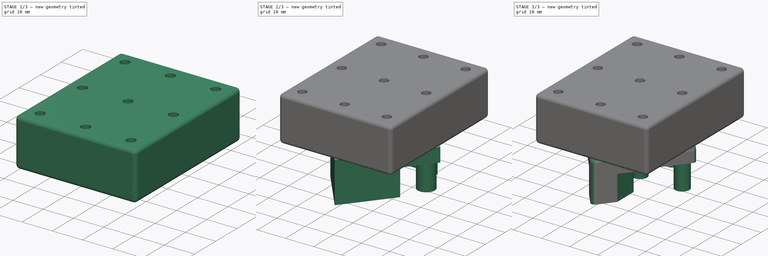
[diagram: build sequence overview — one tinted view per stage of 3, left to right]
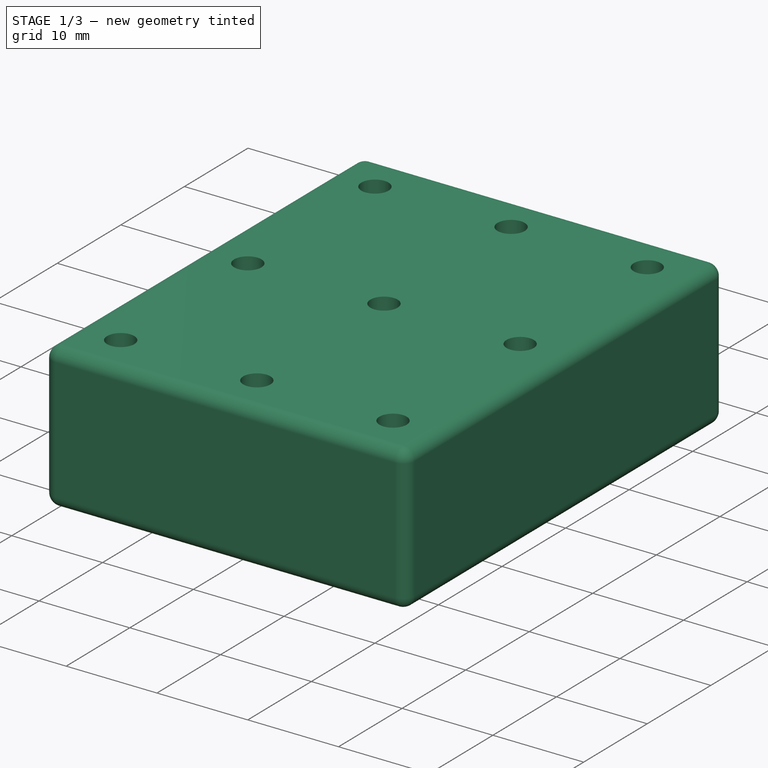
[diagram: stage 1 of 3 — iso view after this stage's code; geometry added in this stage tinted green]
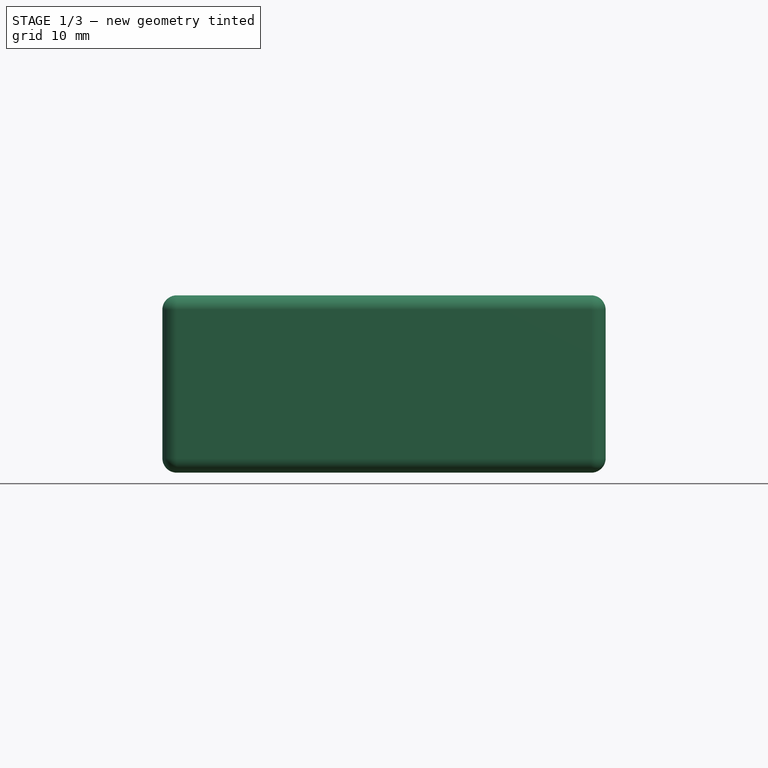
[diagram: stage 1 of 3 — front view after this stage's code; geometry added in this stage tinted green]
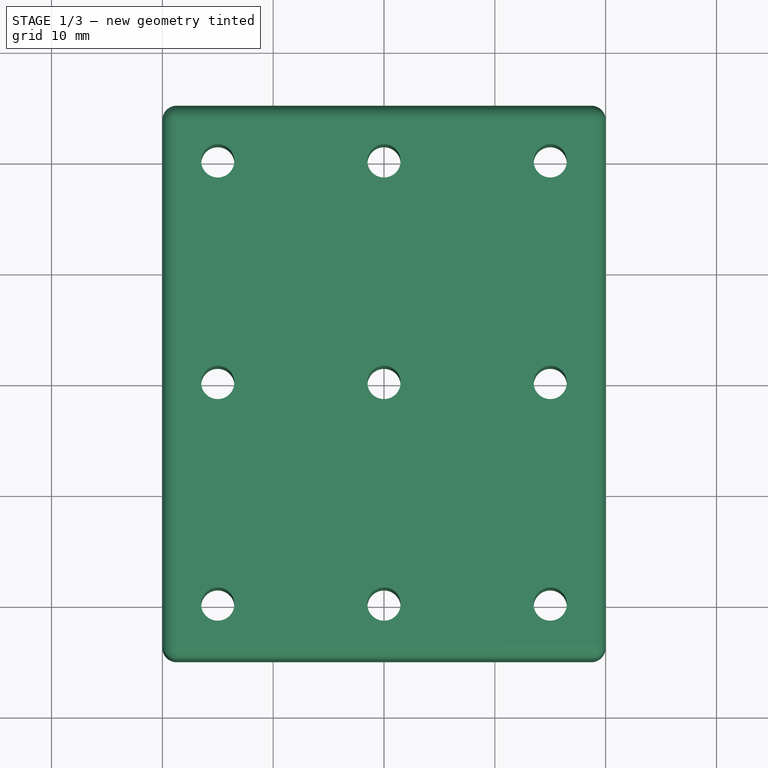
[diagram: stage 1 of 3 — top view after this stage's code; geometry added in this stage tinted green]
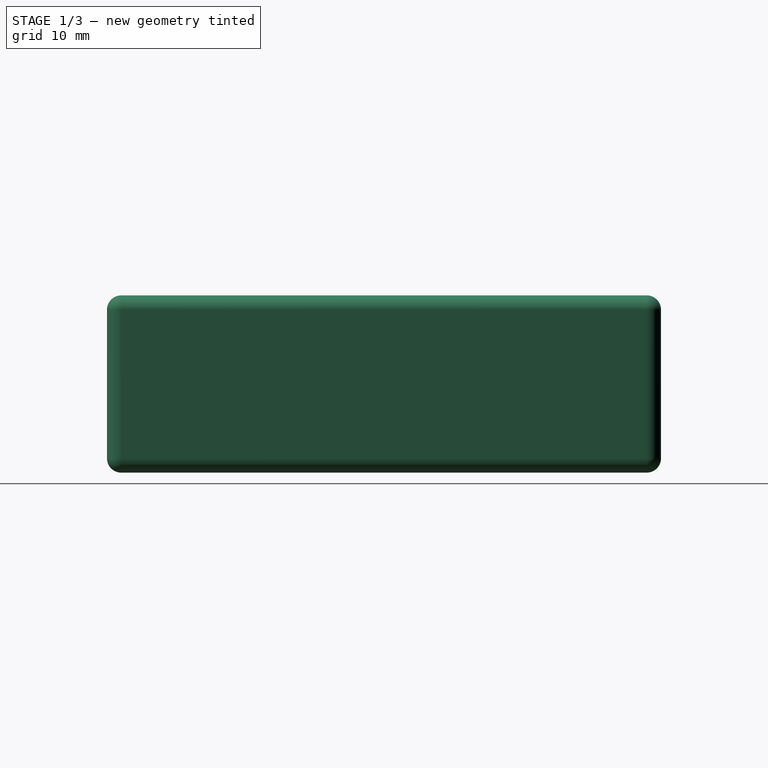
[diagram: stage 1 of 3 — right view after this stage's code; geometry added in this stage tinted green]
FCSTD DOCUMENT  (FreeCAD 1.1R38728 (Git))
Label: pulley_holder
License: All rights reserved
LicenseURL: https://en.wikipedia.org/wiki/All_rights_reserved
objects: Sketcher::SketchObject×4, PartDesign::Pad×2, PartDesign::Pocket×2, PartDesign::Fillet×2, PartDesign::Body×2, PartDesign::SubShapeBinder×1, App::Link×1
note: 29 computed .brp shape members not serialized (recipe doc carries the construction recipe); baked Part::Feature solids carry a one-line shape summary decoded from their .brp
EXTERNAL_REF file=Masterfile.FCStd obj=Spreadsheet

FEATURE [PartDesign::Body] Body  label="pulley_holder1"
  AllowCompound = false
  Group = -> [Sketch,Pad,Sketch001,Pocket,Sketch002,Pocket001,Fillet]
  Origin = -> Origin
  Tip = -> Fillet
FEATURE [PartDesign::SubShapeBinder] Binder
  BindCopyOnChange = 0
  BindMode = 0
  ClaimChildren = false
  Context = -> Body001 [Binder.]
  Fuse = false
  MakeFace = true
  OffsetFill = false
  OffsetIntersection = false
  OffsetJoinType = 0
  OffsetOpenResult = false
  PartialLoad = false
  Refine = true
  Relative = true
  Support = -> [Body[Fillet.Face22]]
  _Version = 2
FEATURE [Sketcher::SketchObject] Sketch003
  ArcFitTolerance = 1e-06
  AttachmentOffset = pos=(0,0,14.5) rot=(0,0,1;0rad)
  AttachmentSupport = -> [XY_Plane001]
  FullyConstrained = true
  MakeInternals = false
  MapMode = 5
  Placement = pos=(0,0,14.5) rot=(0,0,1;0rad)
  expr: .AttachmentOffset.Base.z = <<LinkDimensions>>.holderHeight
  expr: .Placement.Base.z = <<LinkDimensions>>.holderHeight
  expr: Constraints[21] = 40 mm
  expr: Constraints[22] = <<LinkDimensions>>.pulleyDiameter * 2
  expr: Constraints[31] = <<LinkDimensions>>.drillDiameter
  expr: Constraints[41] = <<LinkDimensions>>.holderLength
  expr: Constraints[42] = <<LinkDimensions>>.holderWidth
  sketch-geometry (17):
    g0: Circle CenterX=-15 CenterY=20 CenterZ=0 NormalX=0 NormalY=0 NormalZ=1 AngleXU=0 Radius=1.5
    g1: Circle CenterX=0 CenterY=20 CenterZ=0 NormalX=0 NormalY=0 NormalZ=1 AngleXU=0 Radius=1.5
    g2: Circle CenterX=15 CenterY=20 CenterZ=0 NormalX=0 NormalY=0 NormalZ=1 AngleXU=0 Radius=1.5
    g3: Circle CenterX=0 CenterY=0 CenterZ=0 NormalX=0 NormalY=0 NormalZ=1 AngleXU=0 Radius=1.5
    g4: Circle CenterX=-15 CenterY=0 CenterZ=0 NormalX=0 NormalY=0 NormalZ=1 AngleXU=0 Radius=1.5
    g5: Circle CenterX=15 CenterY=0 CenterZ=0 NormalX=0 NormalY=0 NormalZ=1 AngleXU=0 Radius=1.5
    g6: Circle CenterX=-15 CenterY=-20 CenterZ=0 NormalX=0 NormalY=0 NormalZ=1 AngleXU=0 Radius=1.5
    g7: Circle CenterX=0 CenterY=-20 CenterZ=0 NormalX=0 NormalY=0 NormalZ=1 AngleXU=0 Radius=1.5
    g8: Circle CenterX=15 CenterY=-20 CenterZ=0 NormalX=0 NormalY=0 NormalZ=1 AngleXU=0 Radius=1.5
    g9: LineSegment [constr] StartX=-15 StartY=20 StartZ=0 EndX=-15 EndY=-20 EndZ=0
    g10: LineSegment [constr] StartX=-15 StartY=-20 StartZ=0 EndX=15 EndY=-20 EndZ=0
    g11: LineSegment [constr] StartX=15 StartY=-20 StartZ=0 EndX=15 EndY=20 EndZ=0
    g12: LineSegment [constr] StartX=15 StartY=20 StartZ=0 EndX=-15 EndY=20 EndZ=0
    g13: LineSegment StartX=-20 StartY=25 StartZ=0 EndX=-20 EndY=-25 EndZ=0
    g14: LineSegment StartX=-20 StartY=-25 StartZ=0 EndX=20 EndY=-25 EndZ=0
    g15: LineSegment StartX=20 StartY=-25 StartZ=0 EndX=20 EndY=25 EndZ=0
    g16: LineSegment StartX=20 StartY=25 StartZ=0 EndX=-20 EndY=25 EndZ=0
  constraints (43):
    c: PointOnObject(g1,g-2)
    c: Coincident(g3,g-1)
    c: PointOnObject(g4,g-1)
    c: PointOnObject(g5,g-1)
    c: PointOnObject(g7,g-2)
    c: Coincident(g9,g10)
    c: Coincident(g10,g11)
    c: Coincident(g11,g12)
    c: Coincident(g12,g9)
    c: Vertical(g11)
    c: Horizontal(g12)
    c: Coincident(g9,g0)
    c: Coincident(g10,g8)
    c: Coincident(g2,g11)
    c: PointOnObject(g1,g12)
    c: PointOnObject(g4,g9)
    c: PointOnObject(g5,g11)
    c: PointOnObject(g7,g10)
    c: Coincident(g6,g9)
    c: Symmetric(g6,g8,g-2)
    c: Symmetric(g6,g0,g-1)
    c: DistanceY(g9,g9) = 40
    c: DistanceX(g12,g12) = 30
    c: Equal(g6,g7)
    c: Equal(g7,g8)
    c: Equal(g8,g5)
    c: Equal(g5,g3)
    c: Equal(g3,g4)
    c: Equal(g4,g0)
    c: Equal(g0,g2)
    c: Equal(g1,g2)
    c: Diameter(g2) = 3
    c: Coincident(g13,g14)
    c: Coincident(g14,g15)
    c: Coincident(g15,g16)
    c: Coincident(g16,g13)
    c: Vertical(g13)
    c: Vertical(g15)
    c: Horizontal(g14)
    c: Horizontal(g16)
    c: Symmetric(g15,g13,g3)
    c: DistanceY(g15,g15) = 50
    c: DistanceX(g14,g14) = 40
FEATURE [PartDesign::Pad] Pad001
  Direction = (0,0,1)
  Length = 16
  Length2 = 10
  Profile = -> Sketch003
  ReferenceAxis = -> Sketch003 [N_Axis]
  Refine = true
  Suppressed = false
  Type = 0
  expr: Length = 16 mm
FEATURE [PartDesign::Fillet] Fillet001
  Base = -> Pad001 [Edge4,Edge7,Edge2,Edge6,Edge5,Edge10,Edge12,Edge1,Edge8,Edge11,Edge9,Edge3]
  BaseFeature = -> Pad001
  Radius = 1.3
  Refine = true
  SupportTransform = false
  Suppressed = false
  UseAllEdges = false
  expr: Radius = <<LinkDimensions>>.filletRadius
FEATURE [PartDesign::Body] Body001  label="pulley_holder2"
  AllowCompound = false
  Group = -> [Binder,Sketch003,Pad001,Fillet001]
  Origin = -> Origin001
  Tip = -> Fillet001
FEATURE [App::Link] Link001  label="LinkDimensions"
  LinkedObject = -> <external Masterfile.FCStd>#Spreadsheet
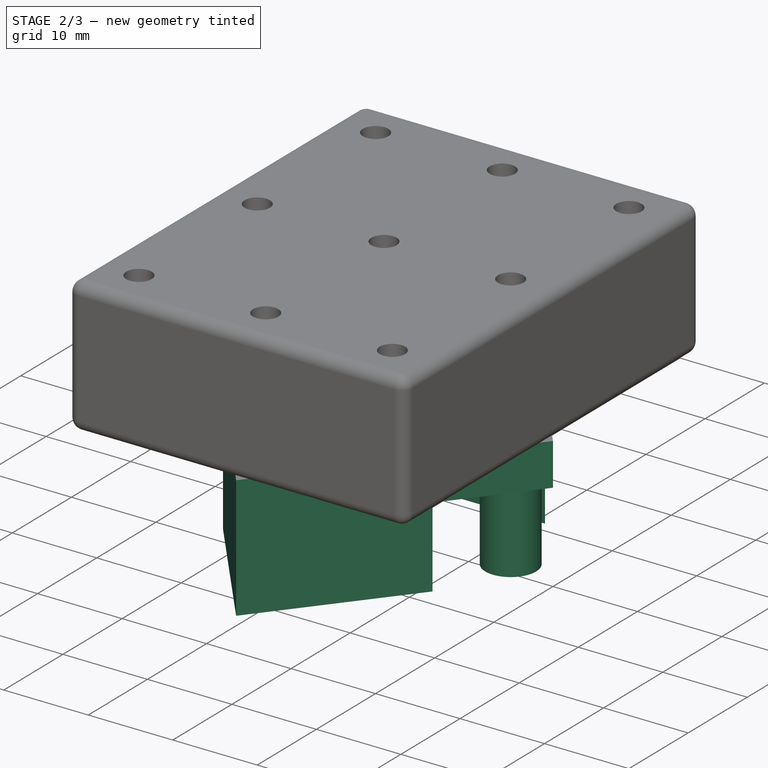
[diagram: stage 2 of 3 — iso view after this stage's code; geometry added in this stage tinted green]
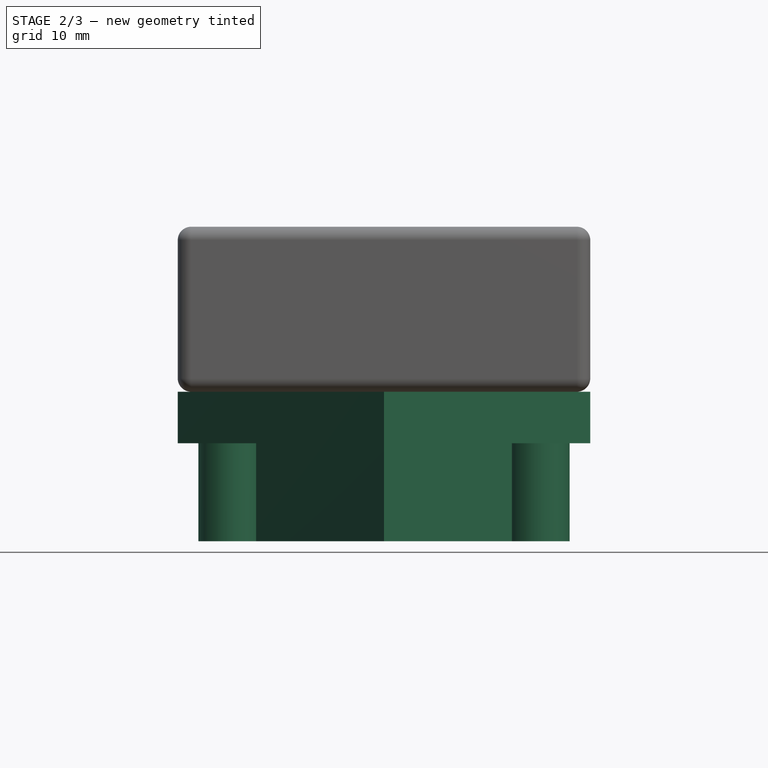
[diagram: stage 2 of 3 — front view after this stage's code; geometry added in this stage tinted green]
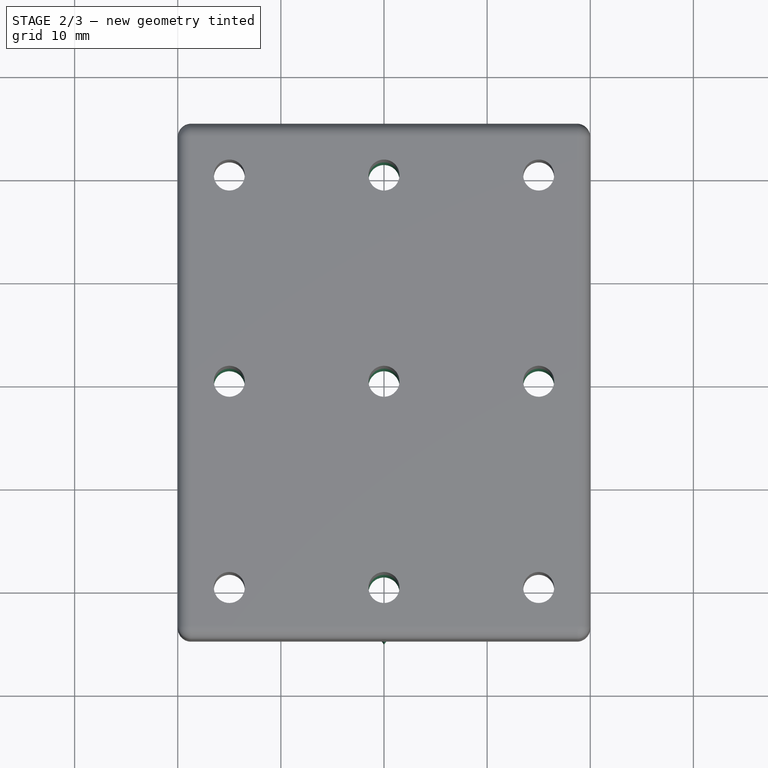
[diagram: stage 2 of 3 — top view after this stage's code; geometry added in this stage tinted green]
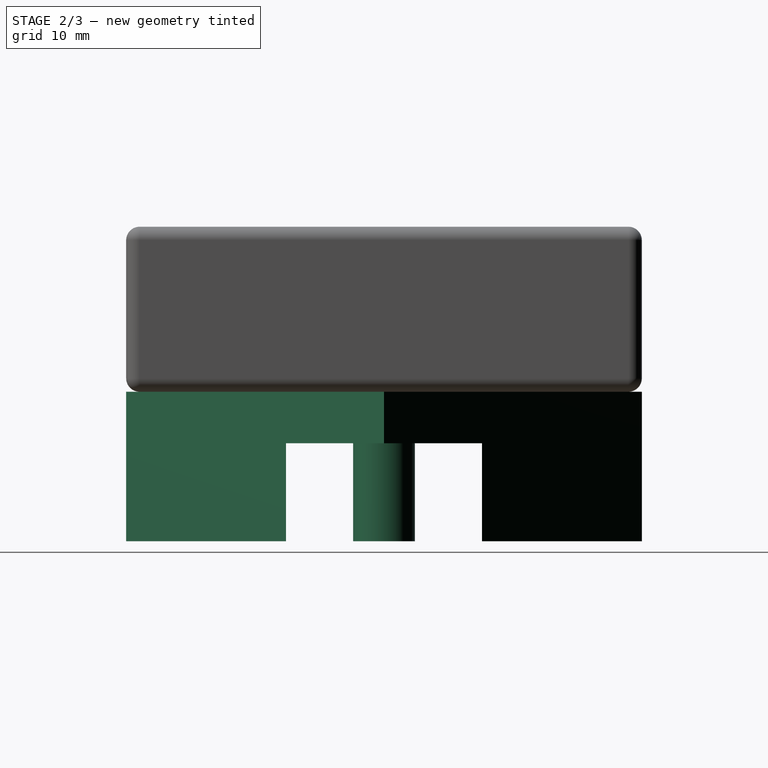
[diagram: stage 2 of 3 — right view after this stage's code; geometry added in this stage tinted green]
FEATURE [Sketcher::SketchObject] Sketch
  ArcFitTolerance = 1e-06
  AttachmentSupport = -> [XY_Plane]
  FullyConstrained = true
  MakeInternals = false
  MapMode = 5
  expr: Constraints[11] = <<LinkDimensions>>.pulleyDiameter * 2
  expr: Constraints[22] = <<LinkDimensions>>.holderLength
  expr: Constraints[23] = <<LinkDimensions>>.holderWidth
  expr: Constraints[3] = <<LinkDimensions>>.drillDiameter
  sketch-geometry (9):
    g0: Circle CenterX=0 CenterY=20 CenterZ=0 NormalX=0 NormalY=0 NormalZ=1 AngleXU=0 Radius=1.5
    g1: Circle CenterX=0 CenterY=-20 CenterZ=0 NormalX=0 NormalY=0 NormalZ=1 AngleXU=0 Radius=1.5
    g2: Circle CenterX=-15 CenterY=0 CenterZ=0 NormalX=0 NormalY=0 NormalZ=1 AngleXU=0 Radius=1.5
    g3: Circle CenterX=0 CenterY=0 CenterZ=0 NormalX=0 NormalY=0 NormalZ=1 AngleXU=0 Radius=1.5
    g4: Circle CenterX=15 CenterY=0 CenterZ=0 NormalX=0 NormalY=0 NormalZ=1 AngleXU=0 Radius=1.5
    g5: LineSegment StartX=-20 StartY=0 StartZ=0 EndX=0 EndY=25 EndZ=0
    g6: LineSegment StartX=0 StartY=25 StartZ=0 EndX=20 EndY=0 EndZ=0
    g7: LineSegment StartX=20 StartY=0 StartZ=0 EndX=0 EndY=-25 EndZ=0
    g8: LineSegment StartX=0 StartY=-25 StartZ=0 EndX=-20 EndY=0 EndZ=0
  constraints (24):
    c: PointOnObject(g0,g-2)
    c: Symmetric(g0,g1,g-1)
    c: Equal(g0,g1)
    c: Diameter(g0) = 3
    c: DistanceY(g1,g0) = 40
    c: PointOnObject(g2,g-1)
    c: Coincident(g3,g-1)
    c: Equal(g0,g2)
    c: Equal(g2,g3)
    c: Equal(g3,g4)
    c: Symmetric(g2,g4,g-2)
    c: DistanceX(g2,g4) = 30
    c: PointOnObject(g5,g-1)
    c: PointOnObject(g5,g-2)
    c: Coincident(g5,g6)
    c: PointOnObject(g6,g-1)
    c: Coincident(g6,g7)
    c: PointOnObject(g7,g-2)
    c: Coincident(g7,g8)
    c: Coincident(g8,g5)
    c: Equal(g5,g6)
    c: Equal(g6,g7)
    c: DistanceY(g7,g5) = 50
    c: DistanceX(g5,g6) = 40
FEATURE [PartDesign::Pad] Pad
  Direction = (0,0,1)
  Length = 14.5
  Length2 = 10
  Profile = -> Sketch
  ReferenceAxis = -> Sketch [N_Axis]
  Refine = true
  Suppressed = false
  Type = 0
  expr: Length = <<LinkDimensions>>.holderHeight
FEATURE [Sketcher::SketchObject] Sketch001
  ArcFitTolerance = 1e-06
  AttachmentSupport = -> [Pad]
  ExternalGeometry = -> [Pad]
  FullyConstrained = true
  MakeInternals = false
  MapMode = 5
  Placement = pos=(0,0,0) rot=(1,0,0;3.14159rad)
  expr: Constraints[11] = <<LinkDimensions>>.pulleyOuterDiameter + 1
  expr: Constraints[5] = <<LinkDimensions>>.pulleyHole + 1
  sketch-geometry (7):
    g0: Circle CenterX=-15 CenterY=0 CenterZ=0 NormalX=0 NormalY=0 NormalZ=1 AngleXU=0 Radius=3
    g1: Circle CenterX=0 CenterY=0 CenterZ=0 NormalX=0 NormalY=0 NormalZ=1 AngleXU=0 Radius=3
    g2: Circle CenterX=15 CenterY=0 CenterZ=0 NormalX=0 NormalY=0 NormalZ=1 AngleXU=0 Radius=3
    g3: ArcOfCircle CenterX=-15 CenterY=0 CenterZ=0 NormalX=0 NormalY=0 NormalZ=1 AngleXU=0 Radius=9.5 StartAngle=1.5708 EndAngle=4.71239
    g4: ArcOfCircle CenterX=15 CenterY=0 CenterZ=0 NormalX=0 NormalY=0 NormalZ=1 AngleXU=0 Radius=9.5 StartAngle=4.71239 EndAngle=7.85398
    g5: LineSegment StartX=-15 StartY=9.5 StartZ=0 EndX=15 EndY=9.5 EndZ=0
    g6: LineSegment StartX=-15 StartY=-9.5 StartZ=0 EndX=15 EndY=-9.5 EndZ=0
  constraints (14):
    c: Coincident(g0,g-3)
    c: Coincident(g1,g-1)
    c: Coincident(g2,g-5)
    c: Equal(g0,g1)
    c: Equal(g1,g2)
    c: Diameter(g0) = 6
    c: Tangent(g3,g5) = 1.5708
    c: Tangent(g3,g6) = -1.5708
    c: Tangent(g4,g5) = 1.5708
    c: Tangent(g4,g6) = -1.5708
    c: Equal(g3,g4)
    c: Diameter(g4) = 19
    c: Coincident(g3,g0)
    c: Coincident(g4,g2)
FEATURE [PartDesign::Pocket] Pocket
  BaseFeature = -> Pad
  Direction = (0,0,1)
  Length = 9.5
  Length2 = 5
  Profile = -> Sketch001
  ReferenceAxis = -> Sketch001 [N_Axis]
  Refine = true
  Suppressed = false
  Type = 0
  expr: Length = <<LinkDimensions>>.pulleyHeight + 0.5
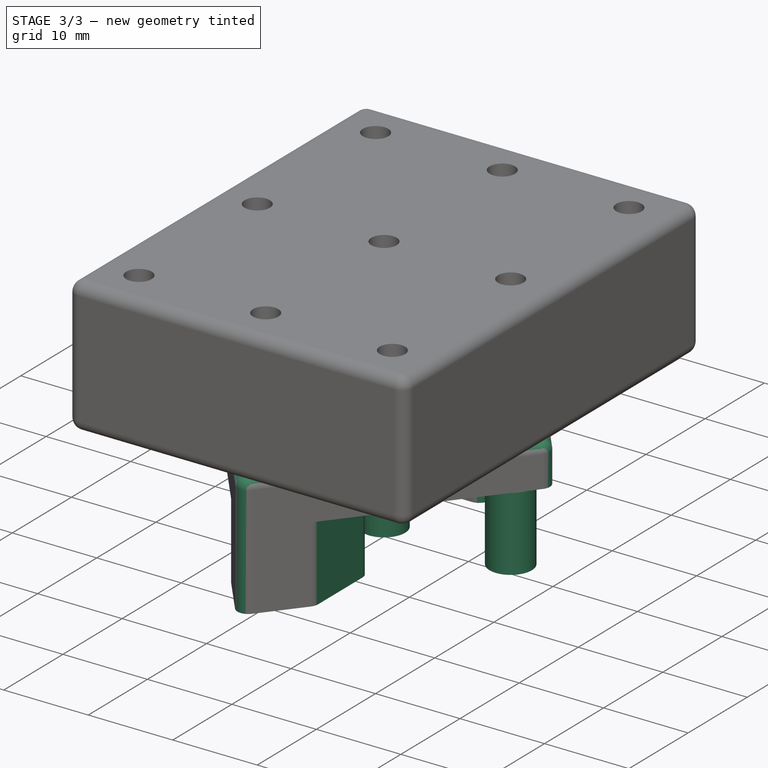
[diagram: stage 3 of 3 — iso view after this stage's code; geometry added in this stage tinted green]
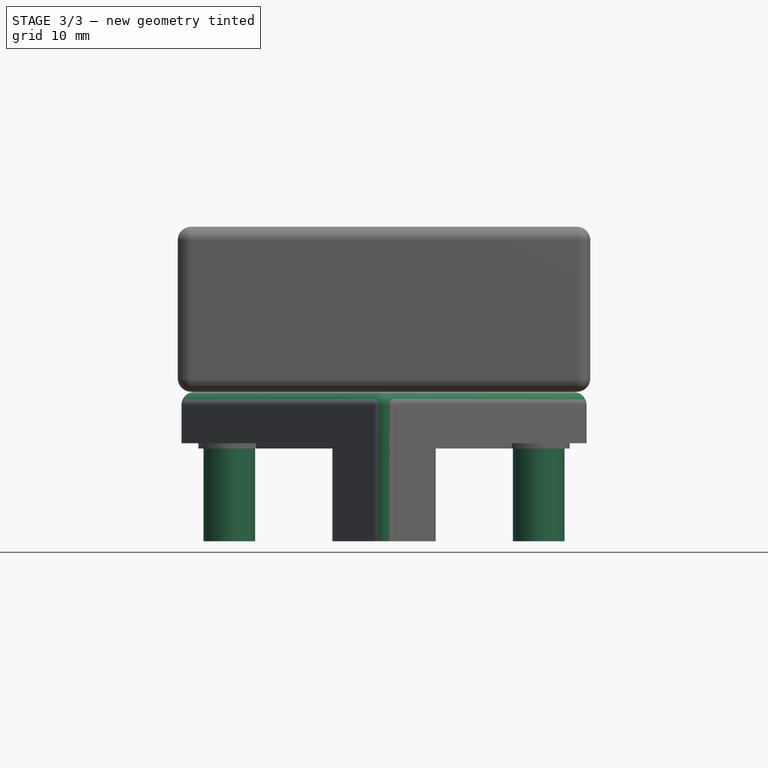
[diagram: stage 3 of 3 — front view after this stage's code; geometry added in this stage tinted green]
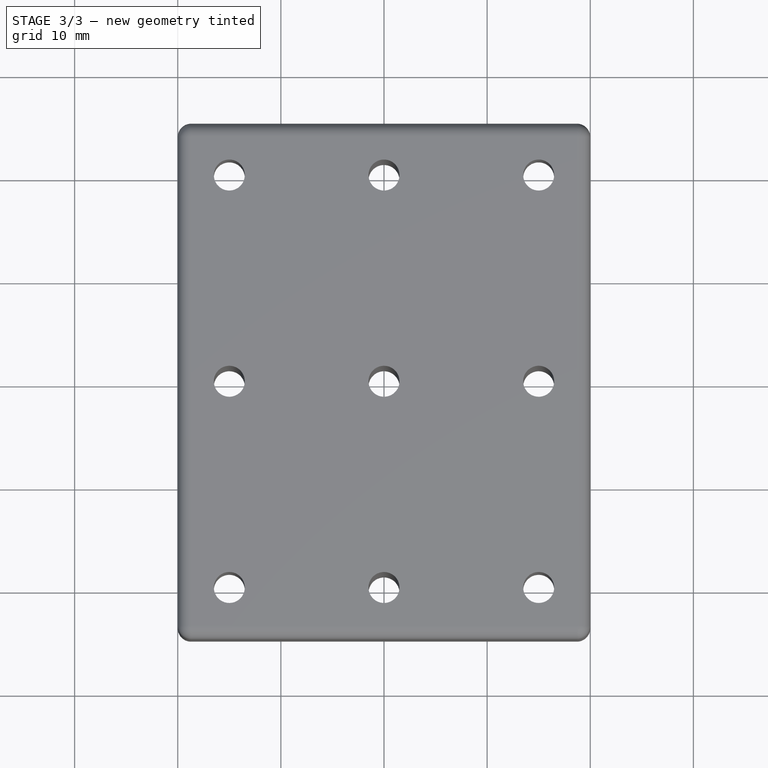
[diagram: stage 3 of 3 — top view after this stage's code; geometry added in this stage tinted green]
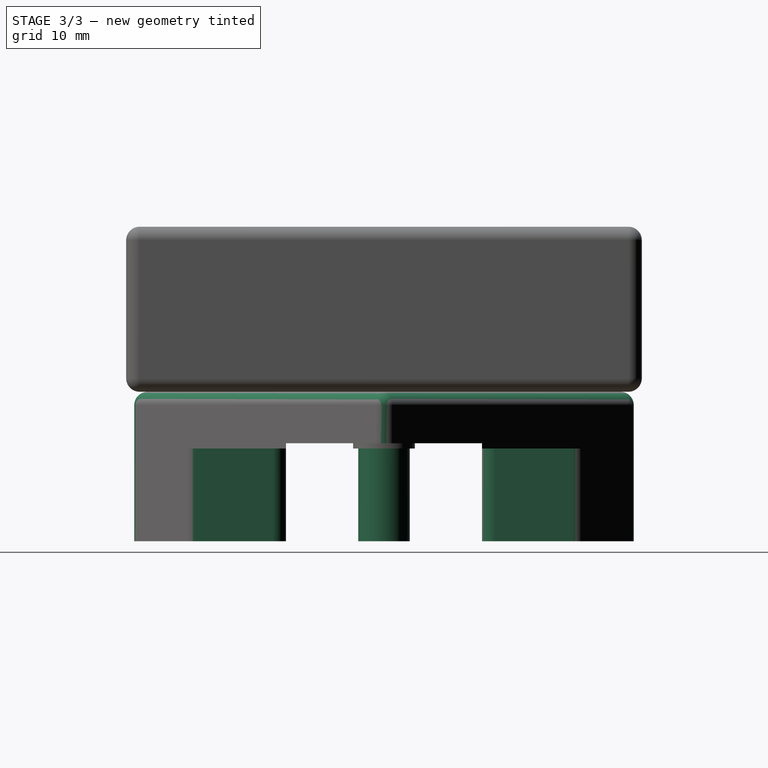
[diagram: stage 3 of 3 — right view after this stage's code; geometry added in this stage tinted green]
FEATURE [Sketcher::SketchObject] Sketch002
  ArcFitTolerance = 1e-06
  AttachmentSupport = -> [Pocket]
  ExternalGeometry = -> [Pocket]
  FullyConstrained = true
  MakeInternals = false
  MapMode = 5
  Placement = pos=(0,0,0) rot=(1,0,0;3.14159rad)
  expr: Constraints[33] = <<LinkDimensions>>.pulleyOuterDiameter + 1
  expr: Constraints[34] = <<LinkDimensions>>.pulleyInnerDiameter - 2
  expr: Constraints[35] = <<LinkDimensions>>.holderLength
  expr: Constraints[36] = <<LinkDimensions>>.holderWidth
  expr: Constraints[5] = <<LinkDimensions>>.pulleyHole
  sketch-geometry (15):
    g0: Circle CenterX=0 CenterY=0 CenterZ=0 NormalX=0 NormalY=0 NormalZ=1 AngleXU=0 Radius=2.5
    g1: Circle CenterX=-15 CenterY=0 CenterZ=0 NormalX=0 NormalY=0 NormalZ=1 AngleXU=0 Radius=2.5
    g2: Circle CenterX=15 CenterY=0 CenterZ=0 NormalX=0 NormalY=0 NormalZ=1 AngleXU=0 Radius=2.5
    g3: LineSegment StartX=-20 StartY=25 StartZ=0 EndX=-20 EndY=-25 EndZ=0
    g4: LineSegment StartX=-20 StartY=-25 StartZ=0 EndX=-5 EndY=-25 EndZ=0
    g5: LineSegment StartX=-5 StartY=-25 StartZ=0 EndX=-5 EndY=-9.5 EndZ=0
    g6: LineSegment StartX=-5 StartY=25 StartZ=0 EndX=-20 EndY=25 EndZ=0
    g7: LineSegment StartX=5 StartY=25 StartZ=0 EndX=5 EndY=9.5 EndZ=0
    g8: LineSegment StartX=5 StartY=-25 StartZ=0 EndX=20 EndY=-25 EndZ=0
    g9: LineSegment StartX=20 StartY=-25 StartZ=0 EndX=20 EndY=25 EndZ=0
    g10: LineSegment StartX=20 StartY=25 StartZ=0 EndX=5 EndY=25 EndZ=0
    g11: LineSegment StartX=-5 StartY=-9.5 StartZ=0 EndX=5 EndY=-9.5 EndZ=0
    g12: LineSegment StartX=5 StartY=9.5 StartZ=0 EndX=-5 EndY=9.5 EndZ=0
    g13: LineSegment StartX=-5 StartY=9.5 StartZ=0 EndX=-5 EndY=25 EndZ=0
    g14: LineSegment StartX=5 StartY=-9.5 StartZ=0 EndX=5 EndY=-25 EndZ=0
  constraints (37):
    c: Coincident(g0,g-1)
    c: Coincident(g1,g-3)
    c: Coincident(g2,g-4)
    c: Equal(g1,g0)
    c: Equal(g0,g2)
    c: Diameter(g2) = 5
    c: Coincident(g3,g4)
    c: Coincident(g4,g5)
    c: Coincident(g13,g6)
    c: Coincident(g6,g3)
    c: Vertical(g3)
    c: Vertical(g5)
    c: Horizontal(g4)
    c: Horizontal(g6)
    c: Coincident(g14,g8)
    c: Coincident(g8,g9)
    c: Coincident(g9,g10)
    c: Coincident(g10,g7)
    c: Vertical(g7)
    c: Horizontal(g8)
    c: Horizontal(g10)
    c: Horizontal(g12)
    c: Symmetric(g12,g11,g0)
    c: Symmetric(g3,g8,g0)
    c: Symmetric(g3,g9,g0)
    c: Symmetric(g13,g7,g-2)
    c: Coincident(g12,g13)
    c: Coincident(g7,g12)
    c: Coincident(g5,g11)
    c: Vertical(g13)
    c: Symmetric(g7,g11,g-1)
    c: Coincident(g11,g14)
    c: Vertical(g14)
    c: DistanceY(g5,g12) = 19
    c: DistanceX(g4,g8) = 10
    c: DistanceY(g8,g9) = 50
    c: DistanceX(g3,g8) = 40
FEATURE [PartDesign::Pocket] Pocket001
  BaseFeature = -> Pocket
  Direction = (0,0,1)
  Length = 9
  Length2 = 5
  Profile = -> Sketch002
  ReferenceAxis = -> Sketch002 [N_Axis]
  Refine = true
  Suppressed = false
  Type = 0
  expr: Length = <<LinkDimensions>>.pulleyHeight
FEATURE [PartDesign::Fillet] Fillet
  Base = -> Pocket001 [Edge30,Edge31,Edge7,Edge29,Edge41,Edge44,Edge38,Edge28,Edge8,Edge4,Edge6,Edge25,Edge68,Edge72,Edge54,Edge20]
  BaseFeature = -> Pocket001
  Radius = 1.3
  Refine = true
  SupportTransform = false
  Suppressed = false
  UseAllEdges = false
  expr: Radius = <<LinkDimensions>>.filletRadius
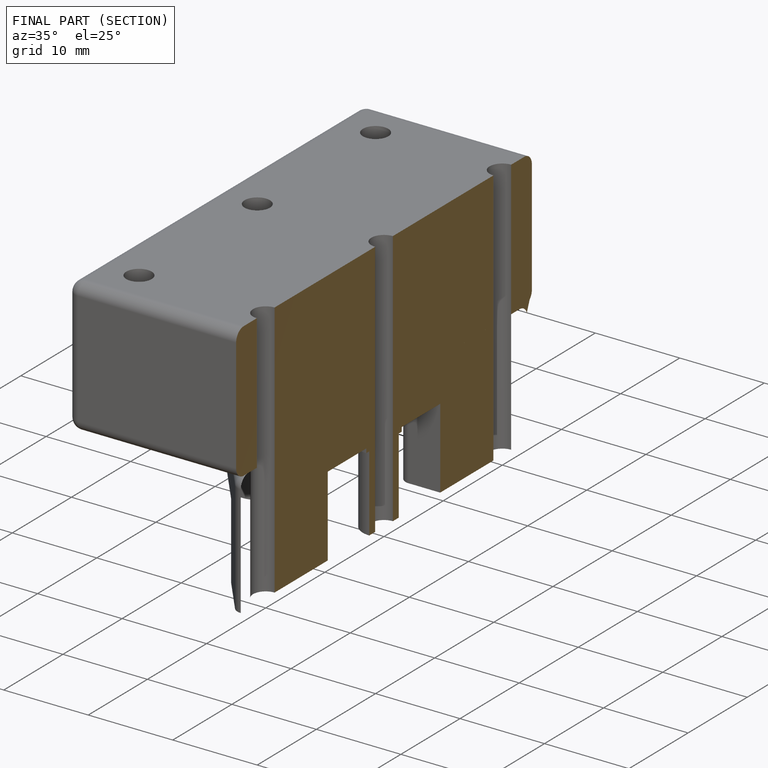
[diagram: finished part — half-section view (interior)]
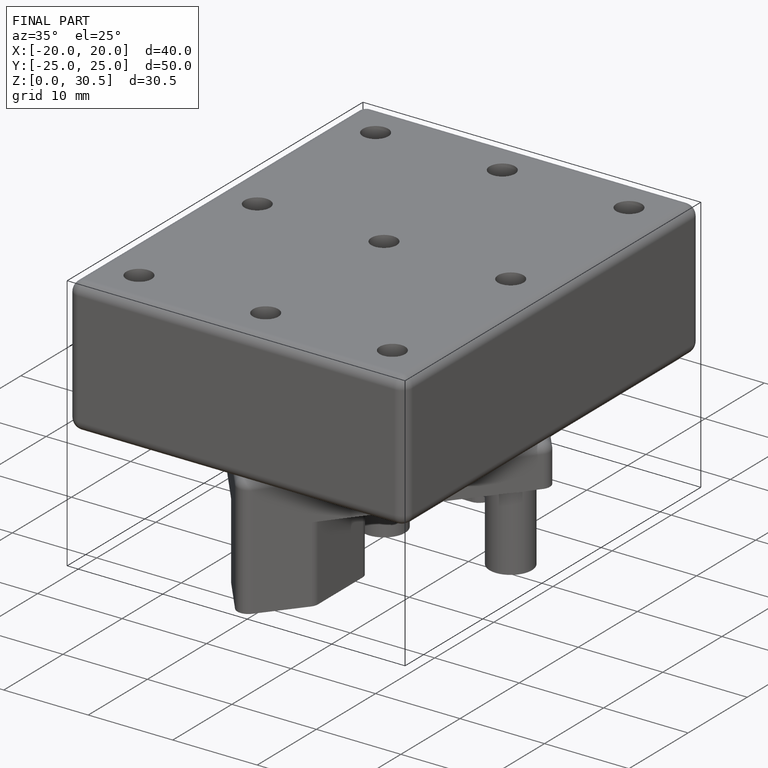
[diagram: finished part — iso view with bounding-box wireframe]
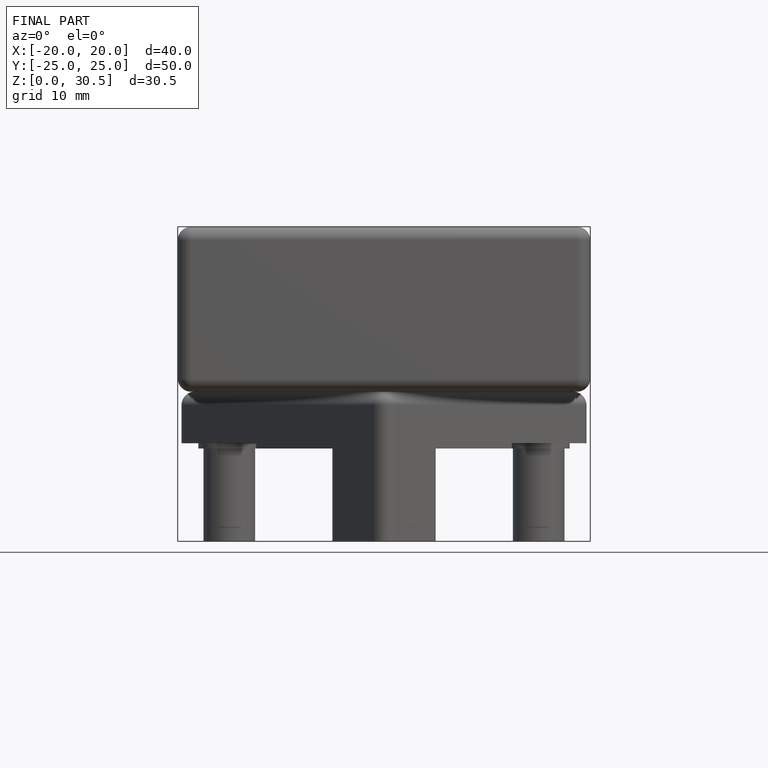
[diagram: finished part — front view with bounding-box wireframe]
